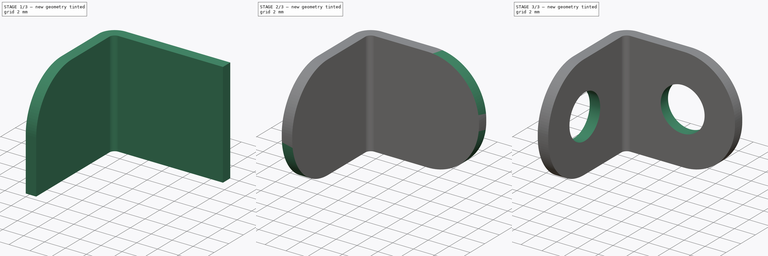
[diagram: build sequence overview — one tinted view per stage of 3, left to right]
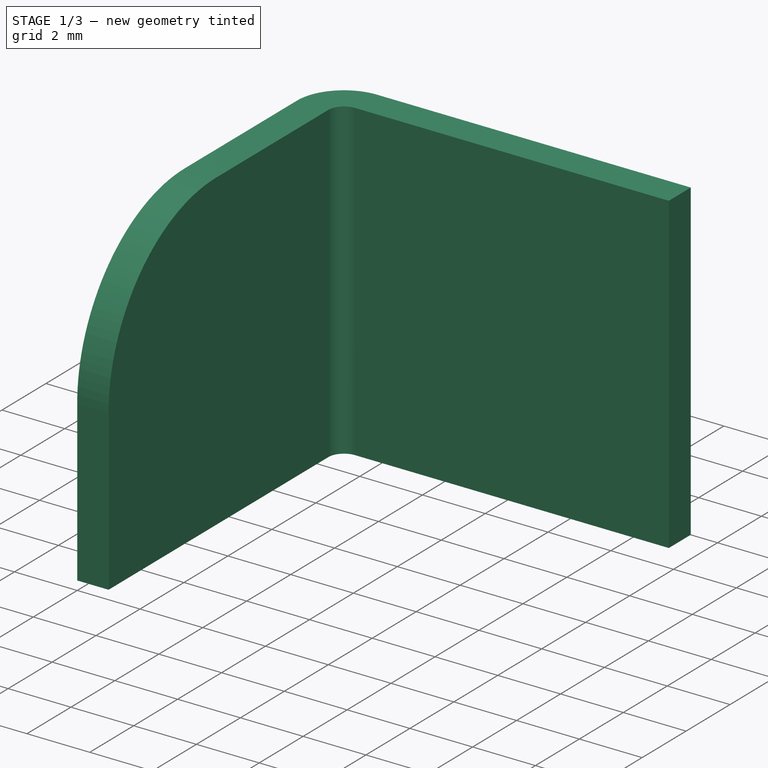
[diagram: stage 1 of 3 — iso view after this stage's code; geometry added in this stage tinted green]
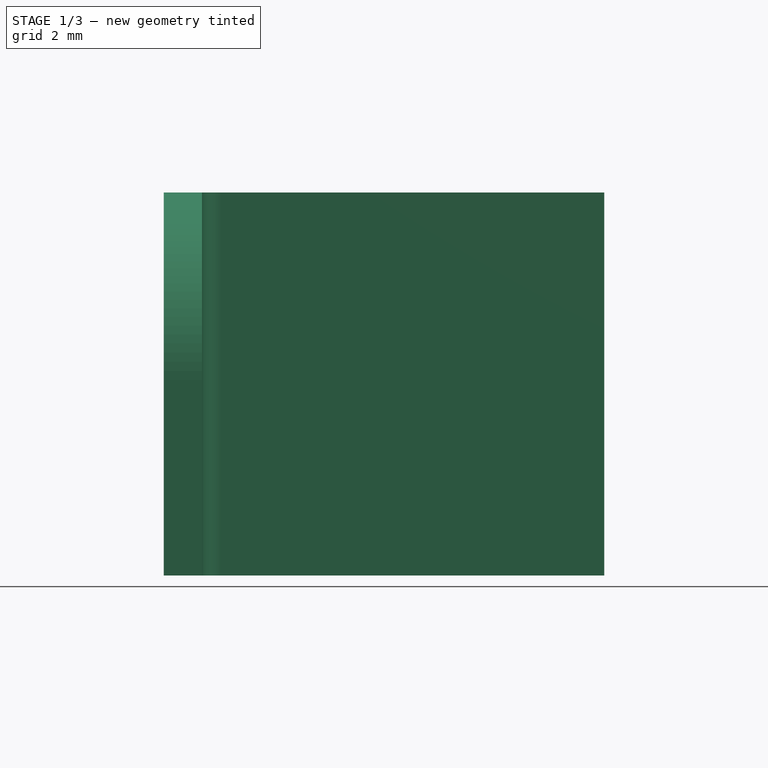
[diagram: stage 1 of 3 — front view after this stage's code; geometry added in this stage tinted green]
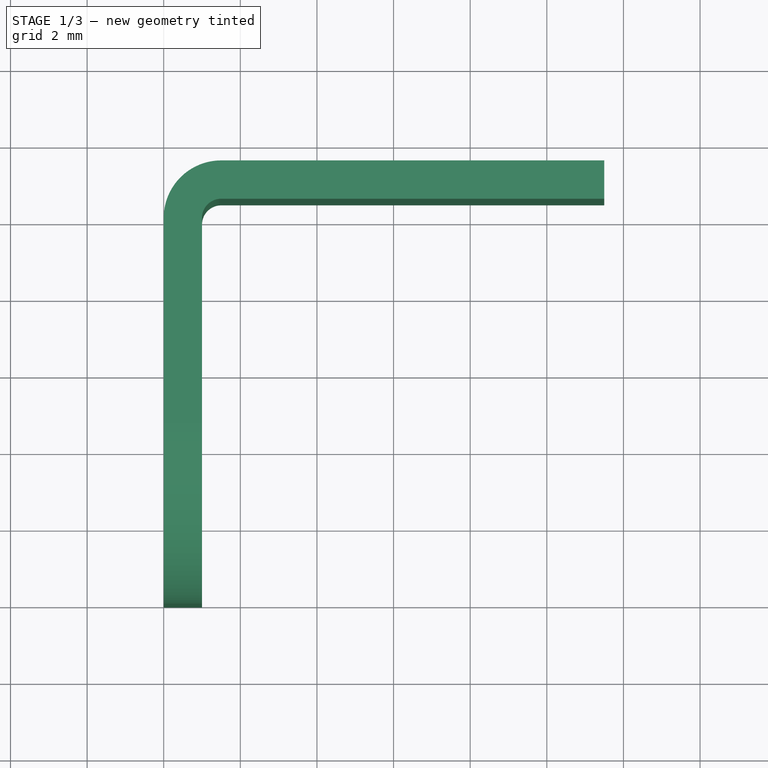
[diagram: stage 1 of 3 — top view after this stage's code; geometry added in this stage tinted green]
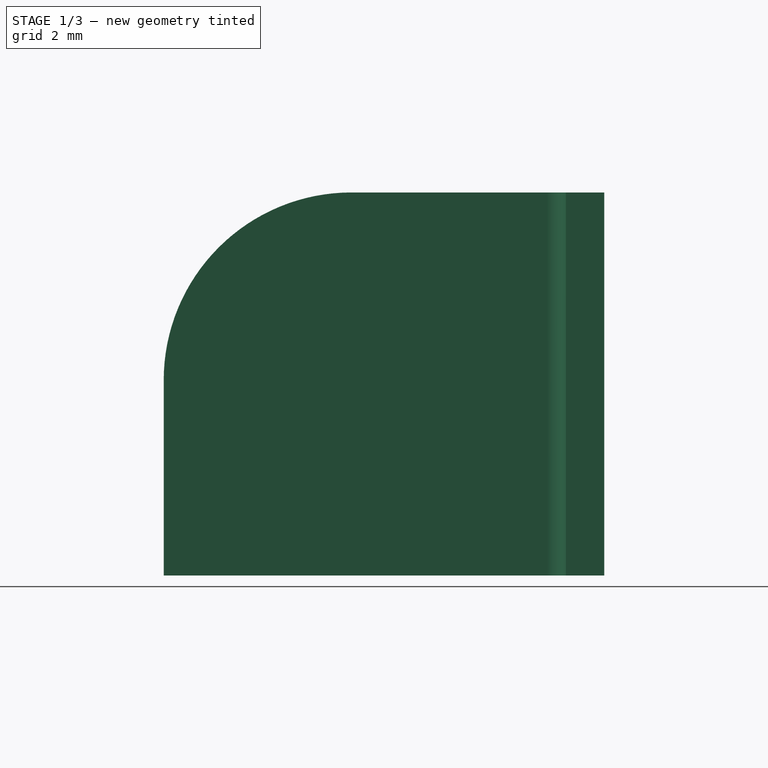
[diagram: stage 1 of 3 — right view after this stage's code; geometry added in this stage tinted green]
FCSTD DOCUMENT  (FreeCAD 0.16RUnknown)
Label: ugol_1_1
License: All rights reserved
LicenseURL: http://en.wikipedia.org/wiki/All_rights_reserved
objects: PartDesign::Fillet×4, Sketcher::SketchObject×3, PartDesign::Pocket×2, PartDesign::Pad×1
note: 13 computed .brp shape members not serialized (recipe doc carries the construction recipe); baked Part::Feature solids carry a one-line shape summary decoded from their .brp

FEATURE [Sketcher::SketchObject] Sketch
  sketch-geometry (8):
    g0: LineSegment StartX=0 StartY=0 StartZ=0 EndX=0 EndY=10 EndZ=0
    g1: LineSegment StartX=1.5 StartY=11.5 StartZ=0 EndX=11.5 EndY=11.5 EndZ=0
    g2: ArcOfCircle CenterX=1.5 CenterY=10 CenterZ=0 NormalX=0 NormalY=0 NormalZ=1 Radius=1.5 StartAngle=1.5708 EndAngle=3.14159
    g3: LineSegment StartX=1 StartY=0 StartZ=0 EndX=1 EndY=10 EndZ=0
    g4: LineSegment StartX=1.5 StartY=10.5 StartZ=0 EndX=11.5 EndY=10.5 EndZ=0
    g5: ArcOfCircle CenterX=1.5 CenterY=10 CenterZ=0 NormalX=0 NormalY=0 NormalZ=1 Radius=0.5 StartAngle=1.5708 EndAngle=3.14159
    g6: LineSegment StartX=0 StartY=0 StartZ=0 EndX=1 EndY=0 EndZ=0
    g7: LineSegment StartX=11.5 StartY=11.5 StartZ=0 EndX=11.5 EndY=10.5 EndZ=0
  constraints (22):
    c: Vertical(g0)
    c: Horizontal(g1)
    c: Tangent(g0,g2) = 1.5708
    c: Tangent(g1,g2) = 1.5708
    c: Radius(g2) = 1.5
    c: Vertical(g3)
    c: Horizontal(g4)
    c: Tangent(g3,g5) = 1.5708
    c: Tangent(g4,g5) = 1.5708
    c: Radius(g5) = 0.5
    c: DistanceY(g4,g1) = 1
    c: Horizontal(g6)
    c: Coincident(g0,g6)
    c: Coincident(g3,g6)
    c: DistanceY(g0,g0) = 10
    c: DistanceY(g1) = 11.5
    c: Coincident(g7,g1)
    c: Coincident(g7,g4)
    c: Vertical(g7)
    c: DistanceX(g6,g6) = 1
    c: DistanceX(g1,g1) = 10
    c: DistanceX(g1) = 1.5
FEATURE [PartDesign::Pad] Pad
  Length = 10
  Length2 = 100
  Sketch = -> Sketch
  Type = 0
FEATURE [PartDesign::Fillet] Fillet
  Base = -> Pad [Edge24]
  Radius = 4.9
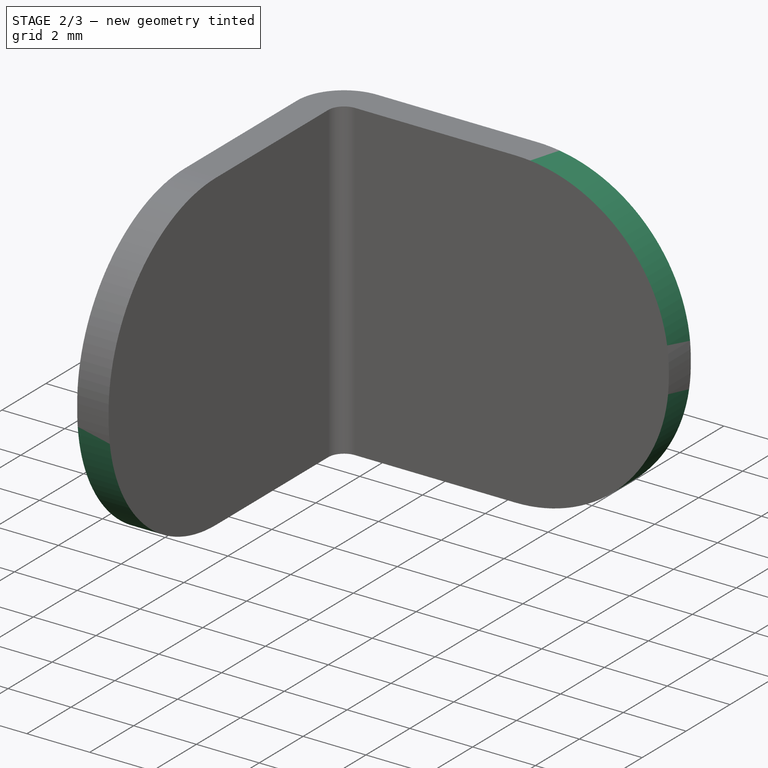
[diagram: stage 2 of 3 — iso view after this stage's code; geometry added in this stage tinted green]
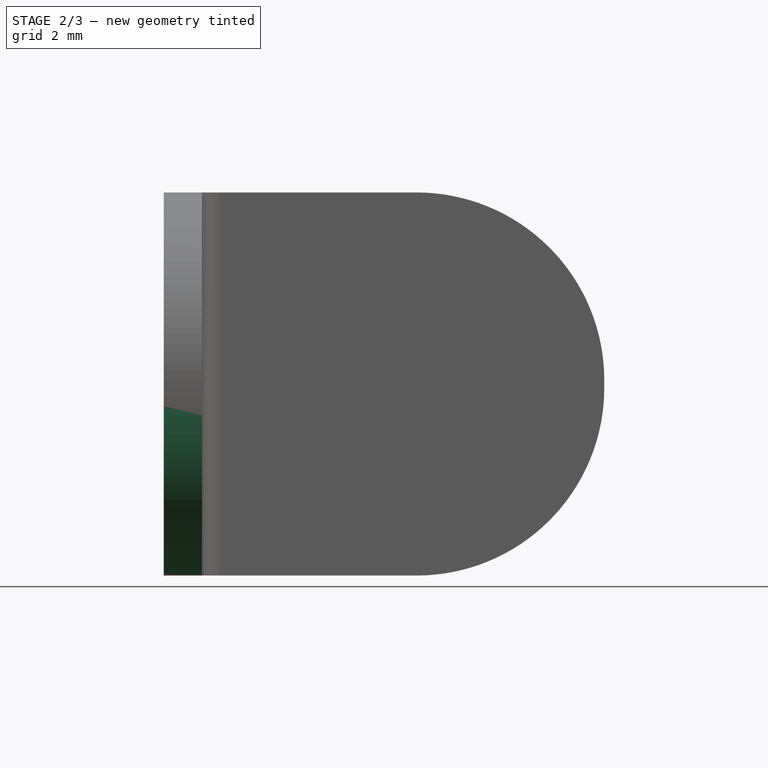
[diagram: stage 2 of 3 — front view after this stage's code; geometry added in this stage tinted green]
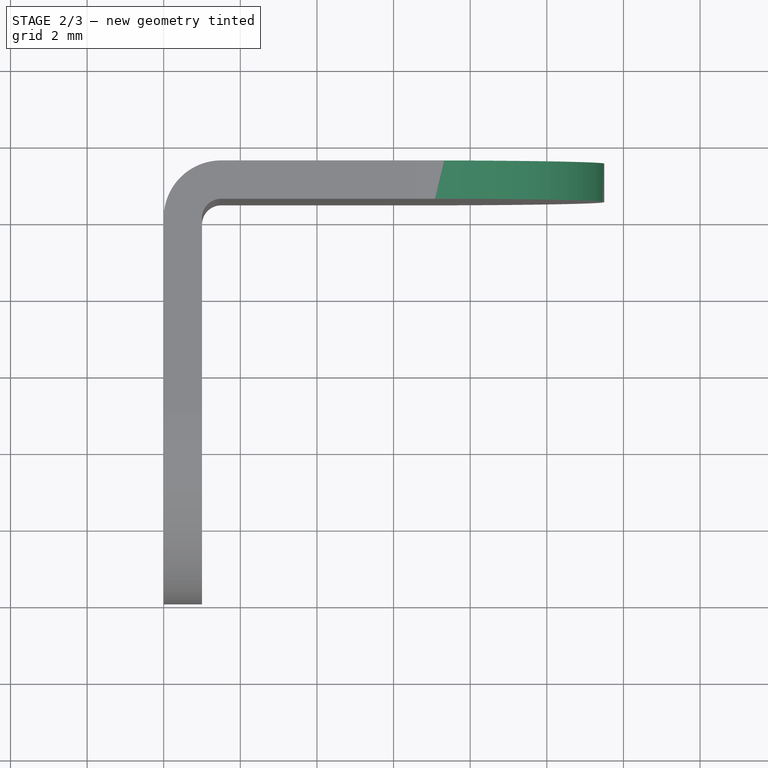
[diagram: stage 2 of 3 — top view after this stage's code; geometry added in this stage tinted green]
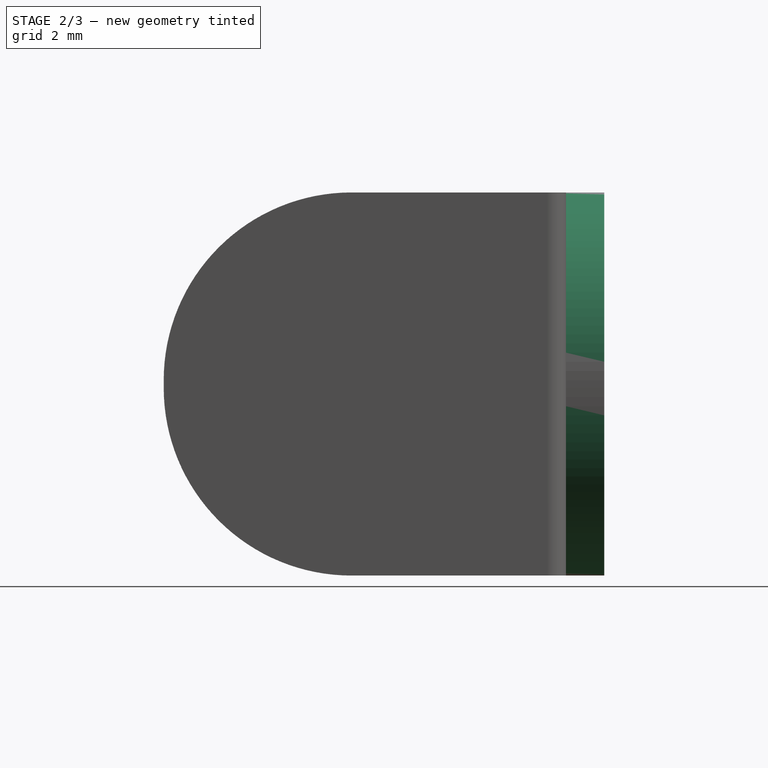
[diagram: stage 2 of 3 — right view after this stage's code; geometry added in this stage tinted green]
FEATURE [PartDesign::Fillet] Fillet001
  Base = -> Fillet [Edge7]
  Radius = 4.9
FEATURE [PartDesign::Fillet] Fillet002
  Base = -> Fillet001 [Edge18]
  Radius = 4.9
FEATURE [PartDesign::Fillet] Fillet003
  Base = -> Fillet002 [Edge31]
  Radius = 4.9
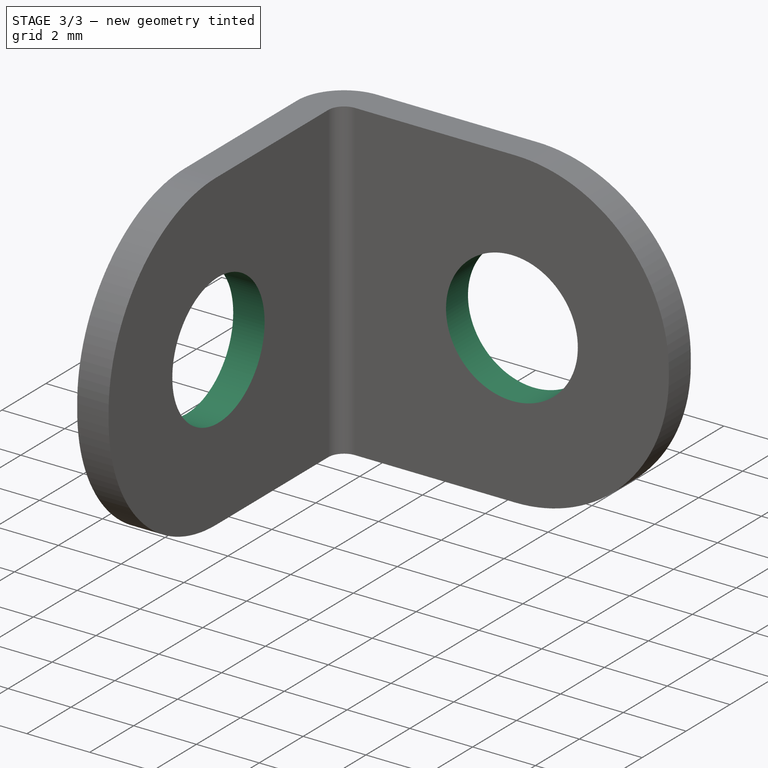
[diagram: stage 3 of 3 — iso view after this stage's code; geometry added in this stage tinted green]
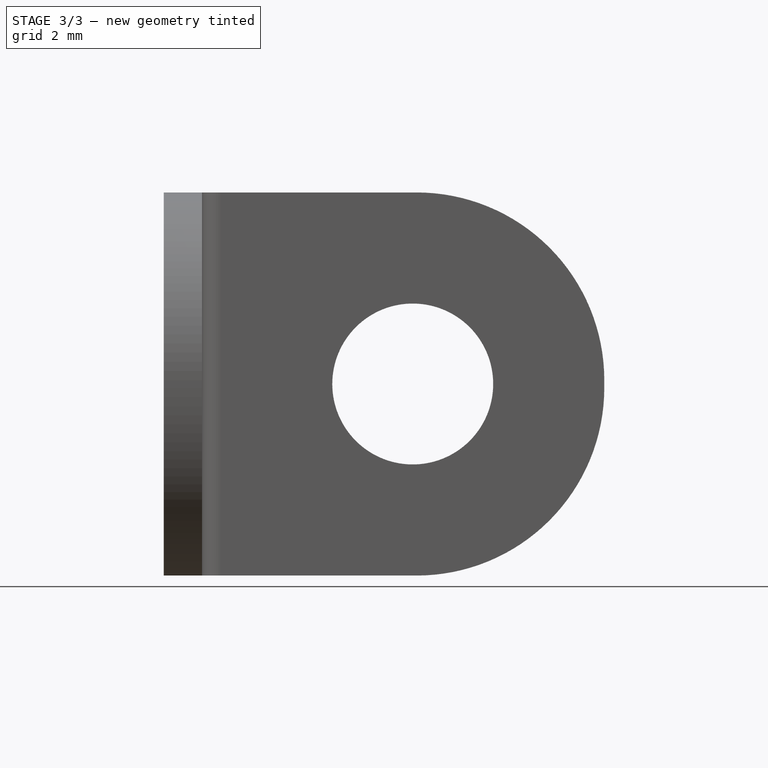
[diagram: stage 3 of 3 — front view after this stage's code; geometry added in this stage tinted green]
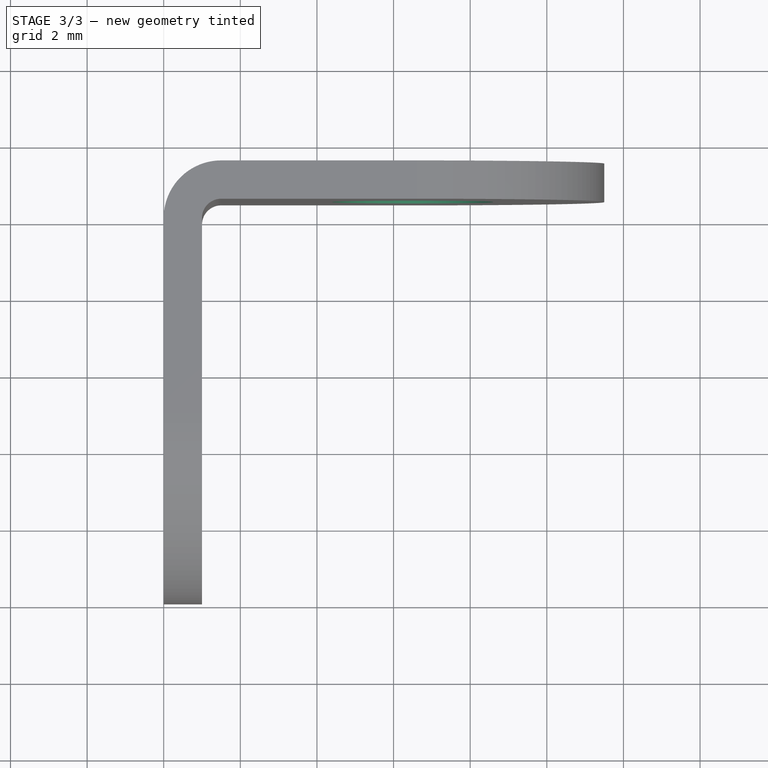
[diagram: stage 3 of 3 — top view after this stage's code; geometry added in this stage tinted green]
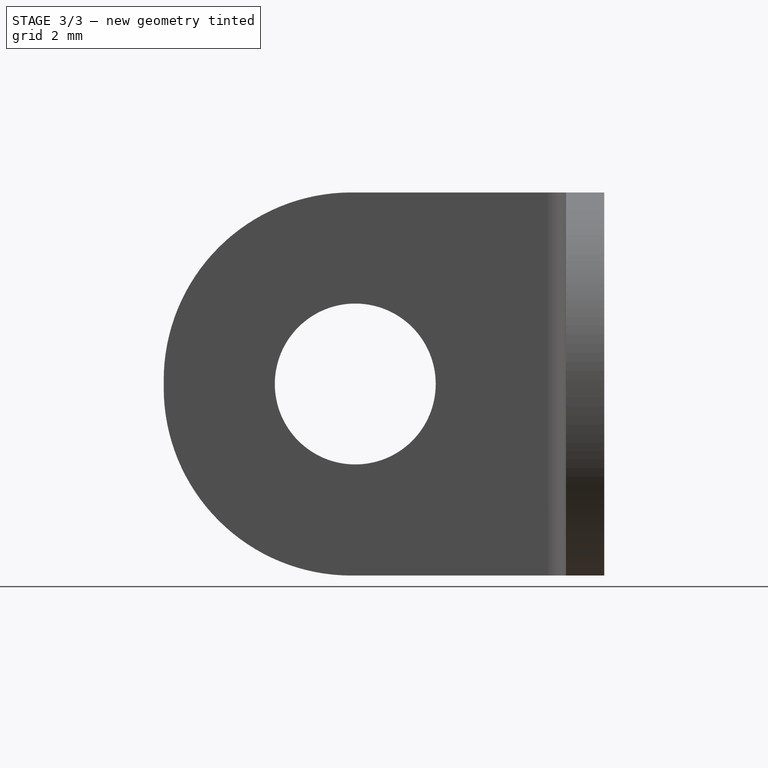
[diagram: stage 3 of 3 — right view after this stage's code; geometry added in this stage tinted green]
FEATURE [Sketcher::SketchObject] Sketch001
  Placement = pos=(0,0,0) rot=(0.57735,-0.57735,-0.57735;2.0944rad)
  Support = -> Fillet003 [Face9]
  sketch-geometry (1):
    g0: Circle CenterX=-5 CenterY=5 CenterZ=0 NormalX=0 NormalY=0 NormalZ=1 Radius=2.1
  constraints (3):
    c: Radius(g0) = 2.1
    c: DistanceX(g0) = -5
    c: DistanceY(g0) = 5
FEATURE [PartDesign::Pocket] Pocket
  Length = 5
  Sketch = -> Sketch001
  Type = 1
FEATURE [Sketcher::SketchObject] Sketch002
  Placement = pos=(0,11.5,0) rot=(0,0.707107,0.707107;3.14159rad)
  Support = -> Pocket [Face1]
  sketch-geometry (1):
    g0: Circle CenterX=-6.5 CenterY=5 CenterZ=0 NormalX=0 NormalY=0 NormalZ=1 Radius=2.1
  constraints (3):
    c: Radius(g0) = 2.1
    c: DistanceX(g0) = -6.5
    c: DistanceY(g0) = 5
FEATURE [PartDesign::Pocket] Pocket001
  Length = 5
  Sketch = -> Sketch002
  Type = 1
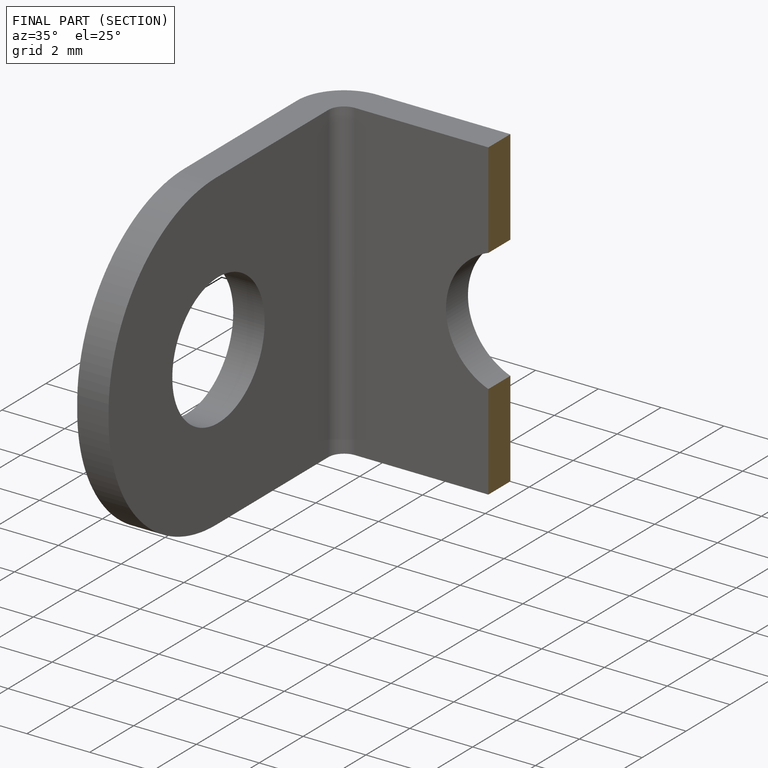
[diagram: finished part — half-section view (interior)]
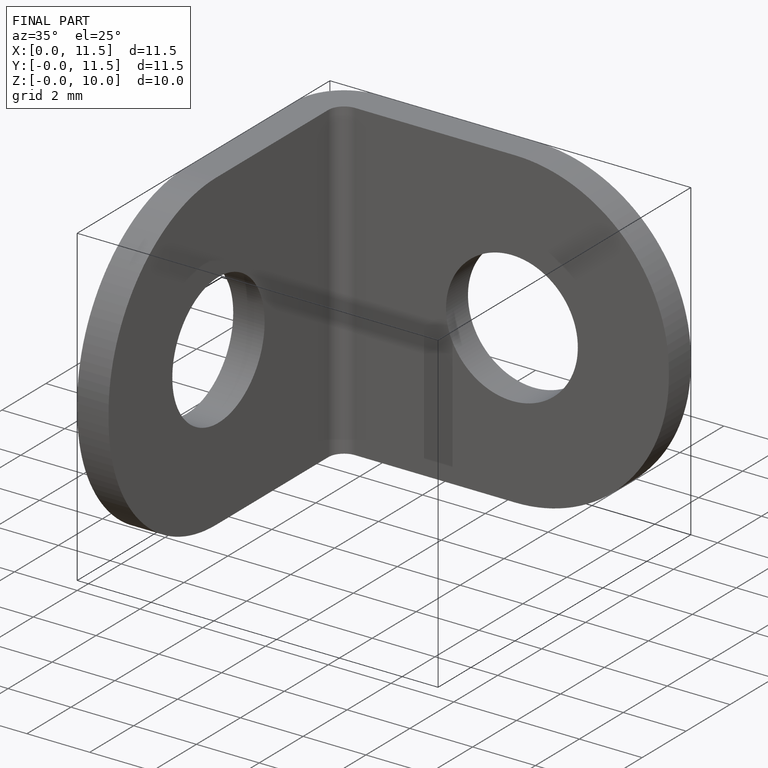
[diagram: finished part — iso view with bounding-box wireframe]
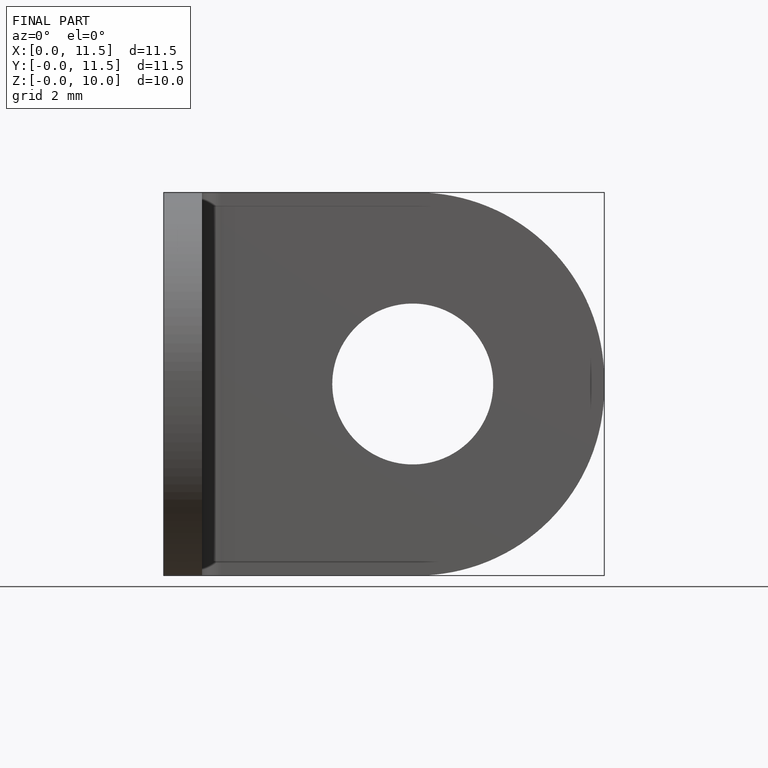
[diagram: finished part — front view with bounding-box wireframe]
